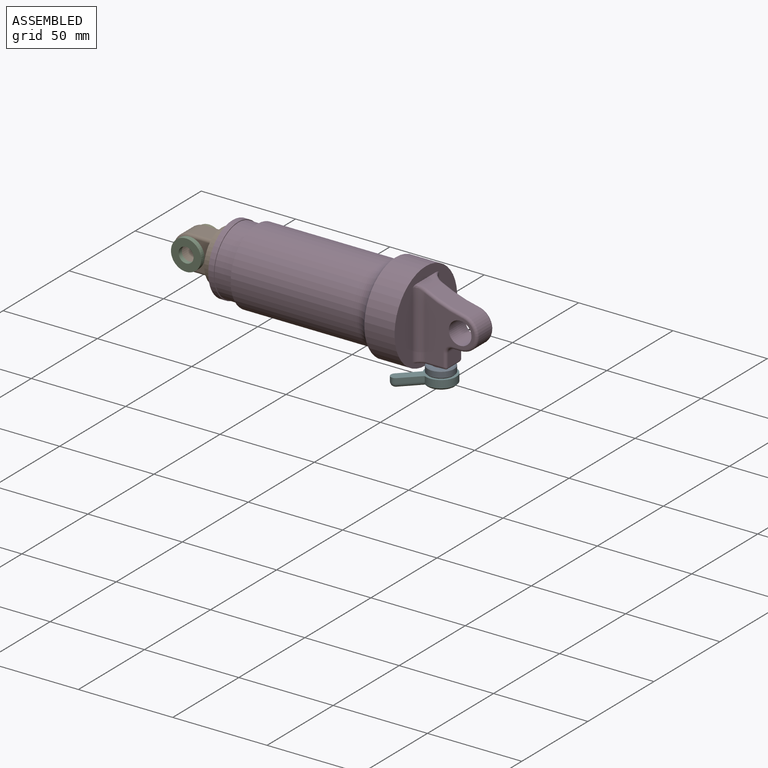
[diagram: assembled view]
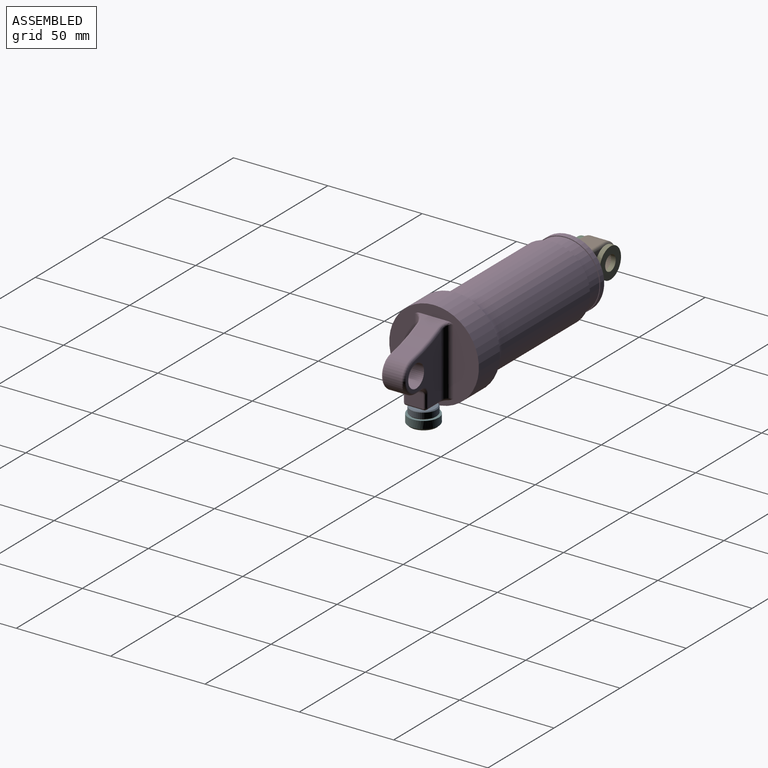
[diagram: assembled view, second angle]
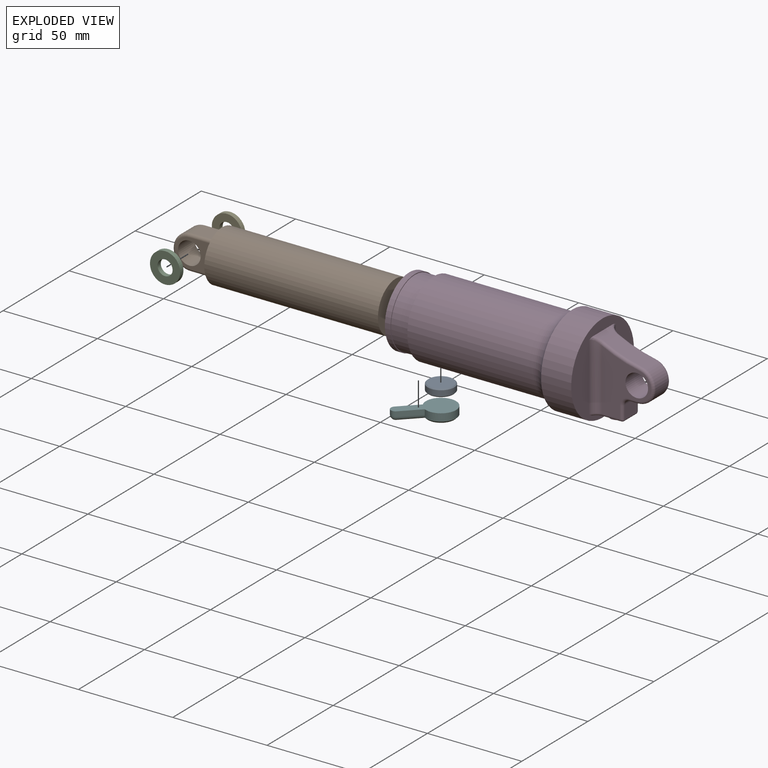
[diagram: exploded view]
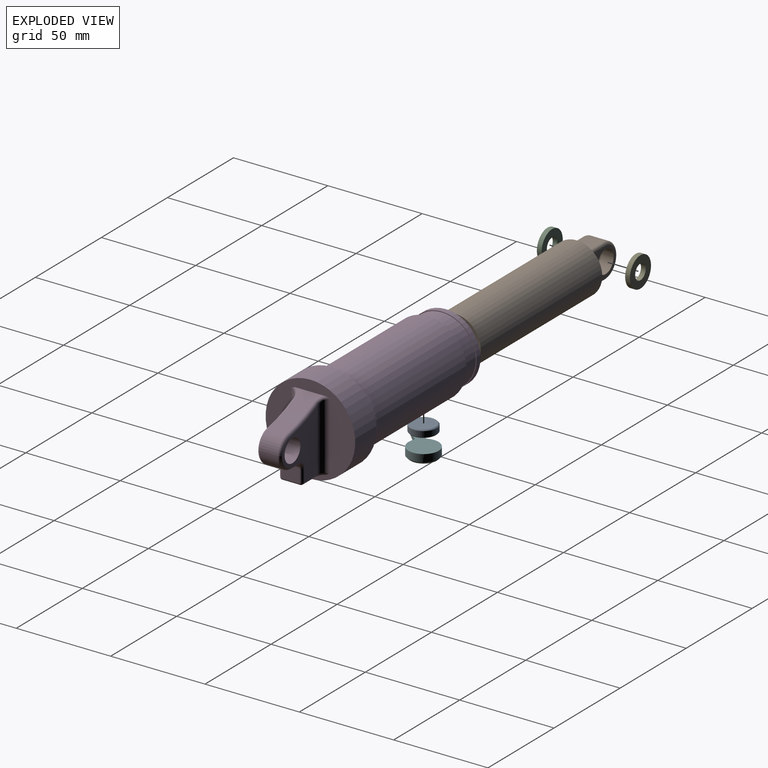
[diagram: exploded view, second angle]
ASSEMBLY  parts=6 mates=5
PART A: 5 faces, bbox 14x14x4 mm
  f0: cylinder r=7mm len=14mm, axis (0,0,1), area 131.9mm2, adj f3,f4
  f1: plane 13x13mm, normal (0,0,-1), area 132.7mm2, adj f4
  f2: plane 13x13mm, normal (0,0,1), area 132.7mm2, adj f3
  f3: cone r=7mm half-angle=45deg, axis (0,0,-1), area 30mm2, adj f0,f2
  f4: cone r=6.5mm half-angle=45deg, axis (0,0,1), area 30mm2, adj f0,f1
PART B: 23 faces, bbox 114.7x27x27 mm
  f0: plane 27x27mm, normal (-1,0,0), area 254.8mm2, adj f1,f14,f15,f16,f17,f18,f19,f20
  f1: cylinder r=13.5mm len=92mm, axis (-1,0,0), area 7803.7mm2, adj f0,f2
  f2: plane 27x27mm, normal (1,0,0), area 572.6mm2, adj f1
  f3: plane 11.5x9.5mm, normal (0,0,1), area 109.2mm2, adj f4,f8,f11,f14
  f4: cylinder r=9mm len=18mm, axis (0,1,0), area 268.6mm2, adj f3,f5,f9,f12
  f5: plane 11.5x9.5mm, normal (0,0,-1), area 109.2mm2, adj f4,f10,f13,f21
  f6: plane 19x15mm, normal (0,-1,0), area 147.8mm2, adj f11,f12,f13,f17,f22
  f7: plane 19x15mm, normal (0,1,0), area 147.8mm2, adj f8,f9,f10,f18,f22
  f8: cylinder r=1.5mm len=11.5mm, axis (-1,0,0), area 27.1mm2, adj f3,f7,f9,f16
  f9: torus R=7.5mm, axis (0,-1,0), area 62.6mm2, adj f4,f7,f8,f10
  f10: cylinder r=1.5mm len=11.5mm, axis (1,0,0), area 27.1mm2, adj f5,f7,f9,f20
  f11: cylinder r=1.5mm len=11.5mm, axis (1,0,0), area 27.1mm2, adj f3,f6,f12,f15
  f12: torus R=7.5mm, axis (0,-1,0), area 62.6mm2, adj f4,f6,f11,f13
  f13: cylinder r=1.5mm len=11.5mm, axis (-1,0,0), area 27.1mm2, adj f5,f6,f12,f19
  f14: cylinder r=1.5mm len=9.5mm, axis (0,-1,0), area 22.4mm2, adj f0,f3,f15,f16
  f15: torus R=3mm, axis (-1,0,0), area 7.6mm2, adj f0,f11,f14,f17
  f16: torus R=3mm, axis (-1,0,0), area 7.6mm2, adj f0,f8,f14,f18
  f17: cylinder r=1.5mm len=15mm, axis (0,0,-1), area 35.3mm2, adj f0,f6,f15,f19
  f18: cylinder r=1.5mm len=15mm, axis (0,0,1), area 35.3mm2, adj f0,f7,f16,f20
  f19: torus R=3mm, axis (-1,0,0), area 7.6mm2, adj f0,f13,f17,f21
  f20: torus R=3mm, axis (-1,0,0), area 7.6mm2, adj f0,f10,f18,f21
  f21: cylinder r=1.5mm len=9.5mm, axis (0,1,0), area 22.4mm2, adj f0,f5,f19,f20
  f22: cylinder r=6mm len=12.5mm, axis (0,-1,0), area 471.2mm2, adj f6,f7
PART C: 4 faces, bbox 16x2.5x16 mm
  f0: cylinder r=8mm len=16mm, axis (0,1,0), area 125.7mm2, adj f2,f3
  f1: cylinder r=4mm len=8mm, axis (0,1,0), area 62.8mm2, adj f2,f3
  f2: plane 16x16mm, normal (0,-1,0), area 150.8mm2, adj f0,f1
  f3: plane 16x16mm, normal (0,1,0), area 150.8mm2, adj f0,f1
PART D: 43 faces, bbox 135.2x60x60 mm
  f0: plane 9.5x4.5mm, normal (0,0,-1), area 42.8mm2, adj f12,f22,f27,f36
  f1: plane 47.93x47.93mm, normal (1,0,0), area 998.8mm2, adj f5,f13,f17,f18,f19,f24,f32,f33
  f2: plane 36.8x36.8mm, normal (-1,0,0), area 491.1mm2, adj f3,f11
  f3: cylinder r=13.5mm len=86.5mm, axis (-1,0,0), area 7337.2mm2, adj f2,f4
  f4: plane 27x27mm, normal (-1,0,0), area 572.6mm2, adj f3
  f5: cylinder r=23.75mm len=47.5mm, axis (-1,0,0), area 2387.6mm2, adj f1,f6
  f6: torus R=27.51mm, axis (-1,0,0), area 1051.5mm2, adj f5,f7
  f7: cylinder r=20mm len=67mm, axis (-1,0,0), area 8419.5mm2, adj f6,f8
  f8: plane 40x40mm, normal (-1,0,0), area 238.8mm2, adj f7,f9
  f9: cylinder r=18mm len=36mm, axis (-1,0,0), area 1131mm2, adj f8,f10
  f10: plane 36.8x36.8mm, normal (1,0,0), area 45.7mm2, adj f9,f11
  f11: cylinder r=18.4mm len=36.8mm, axis (-1,0,0), area 346.8mm2, adj f2,f10
  f12: cylinder r=9mm len=17.84mm, axis (0,1,0), area 252.5mm2, adj f0,f13,f26,f35
  f13: cylinder r=75mm len=24.19mm, axis (0,1,0), area 261.6mm2, adj f1,f12,f24,f25,f33,f34
  f14: plane 32.61x26mm, normal (0,-1,0), area 415.9mm2, adj f19,f25,f26,f27,f28,f29,f31,f42
  f15: plane 32.61x26mm, normal (0,1,0), area 415.9mm2, adj f18,f34,f35,f36,f37,f38,f40,f42
  f16: plane 9.5x7mm, normal (1,0,0), area 66.5mm2, adj f22,f23,f29,f38
  f17: plane 14x12.95mm, normal (0,0,-1), area 87mm2, adj f1,f20,f23,f31,f32,f40,f41
  f18: cylinder r=4mm len=35.65mm, axis (0,0,-1), area 214.4mm2, adj f1,f15,f33,f41
  f19: cylinder r=4mm len=35.65mm, axis (0,0,1), area 214.4mm2, adj f1,f14,f24,f32
  f20: cylinder r=4mm len=8mm, axis (0,0,1), area 25.1mm2, adj f17,f21
  f21: plane 8x8mm, normal (0,0,-1), area 50.3mm2, adj f20
  f22: cylinder r=3mm len=9.5mm, axis (0,-1,0), area 44.8mm2, adj f0,f16,f28,f37
  f23: cylinder r=1mm len=9.5mm, axis (0,1,0), area 14.9mm2, adj f16,f17,f30,f39
  f24: bspline ~6.69x6.15mm, area 12.8mm2, adj f1,f13,f19,f25
  f25: torus R=76.5mm, axis (0,-1,0), area 49.1mm2, adj f13,f14,f24,f26
  f26: torus R=7.5mm, axis (0,-1,0), area 58.8mm2, adj f12,f14,f25,f27
  f27: cylinder r=1.5mm len=4.5mm, axis (-1,0,0), area 10.6mm2, adj f0,f14,f26,f28
  f28: torus R=4.5mm, axis (0,-1,0), area 13.1mm2, adj f14,f22,f27,f29
  f29: cylinder r=1.5mm len=7mm, axis (0,0,1), area 15.9mm2, adj f14,f16,f28,f30
  f30: bspline ~1.58x1.5mm, area 1.6mm2, adj f23,f29,f31
  f31: cylinder r=1.5mm len=10mm, axis (-1,0,0), area 23mm2, adj f14,f17,f30,f32
  f32: torus R=5.5mm, axis (0,0,-1), area 12.5mm2, adj f1,f17,f19,f31
  f33: bspline ~6.69x6.15mm, area 12.8mm2, adj f1,f13,f18,f34
  f34: torus R=76.5mm, axis (0,-1,0), area 49.1mm2, adj f13,f15,f33,f35
  f35: torus R=7.5mm, axis (0,-1,0), area 58.8mm2, adj f12,f15,f34,f36
  f36: cylinder r=1.5mm len=4.5mm, axis (1,0,0), area 10.6mm2, adj f0,f15,f35,f37
  f37: torus R=4.5mm, axis (0,-1,0), area 13.1mm2, adj f15,f22,f36,f38
  f38: cylinder r=1.5mm len=7mm, axis (0,0,-1), area 15.9mm2, adj f15,f16,f37,f39
  f39: bspline ~1.58x1.5mm, area 1.6mm2, adj f23,f38,f40
  f40: cylinder r=1.5mm len=10mm, axis (1,0,0), area 23mm2, adj f15,f17,f39,f41
  f41: torus R=5.5mm, axis (0,0,-1), area 12.5mm2, adj f1,f17,f18,f40
  f42: cylinder r=6mm len=12.5mm, axis (0,-1,0), area 471.2mm2, adj f14,f15
PART E: same geometry as C
PART F: 9 faces, bbox 24.6x24.6x5 mm
  f0: cylinder r=2.5mm len=4.27mm, axis (0,0,1), area 19.6mm2, adj f1,f3,f5,f7
  f1: plane 8.77x8.77mm, normal (-0.71,0.71,0), area 31mm2, adj f0,f2,f5,f8
  f2: cylinder r=8mm len=16mm, axis (0,0,1), area 181.2mm2, adj f1,f3,f5,f6,f8
  f3: plane 8.77x8.77mm, normal (0.71,-0.71,0), area 31mm2, adj f0,f2,f5,f8
  f4: plane 14x14mm, normal (0,0,-1), area 153.9mm2, adj f6
  f5: plane 24.64x24.64mm, normal (0,0,1), area 271.5mm2, adj f0,f1,f2,f3
  f6: cone r=7mm half-angle=45deg, axis (0,0,1), area 62.7mm2, adj f2,f4,f8
  f7: sphere r=2.5mm, area 19.6mm2, adj f0,f8
  f8: cylinder r=2.5mm len=12.73mm, axis (0.71,0.71,0), area 98.9mm2, adj f1,f2,f3,f6,f7
PLACE A t=(-36.12,25.37,-14.14)mm
PLACE B t=(20.38,25.37,-14.14)mm
PLACE C t=(20.38,25.37,-14.14)mm
PLACE D t=(-36.12,25.37,-14.14)mm fixed
PLACE E t=(20.38,40.37,-14.14)mm
PLACE F t=(-36.12,25.37,-14.14)mm
MATE revolute F.f6 <-> A.f3  axis (0,0,-1) through (149.38,25.37,-39.14)mm
MATE slider D.f3 <-> B.f1  axis (-1,0,0) through (125.38,25.37,-14.14)mm
MATE fastened E.f0 <-> B.f4  axis (0,-1,0) through (20.38,31.62,-14.14)mm
MATE fastened B.f4 <-> C.f0  axis (0,-1,0) through (20.38,19.12,-14.14)mm
MATE fastened A.f3 <-> D.f20  axis (0,0,1) through (149.38,25.37,-35.14)mm
